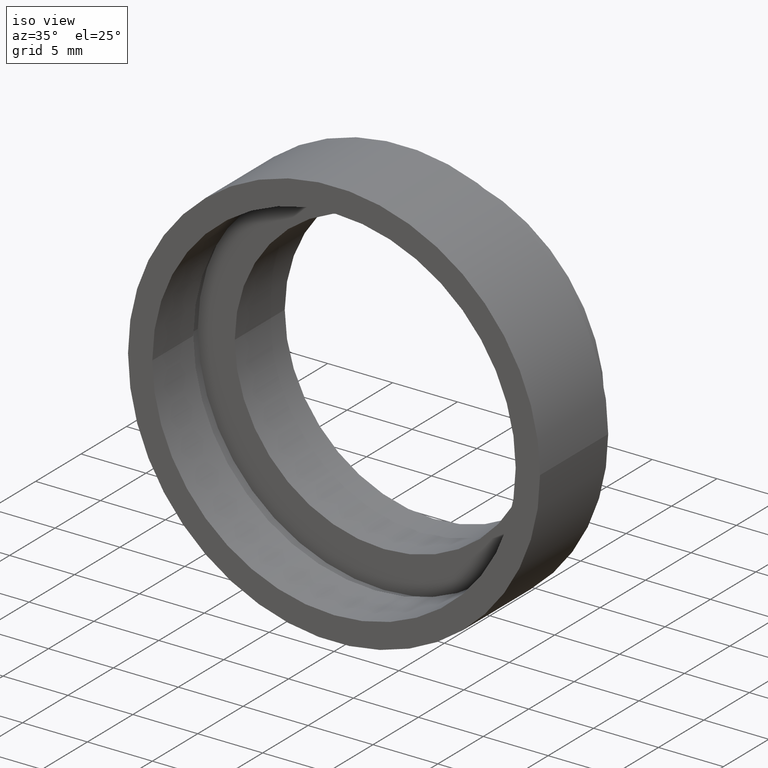
[diagram: clean part render]
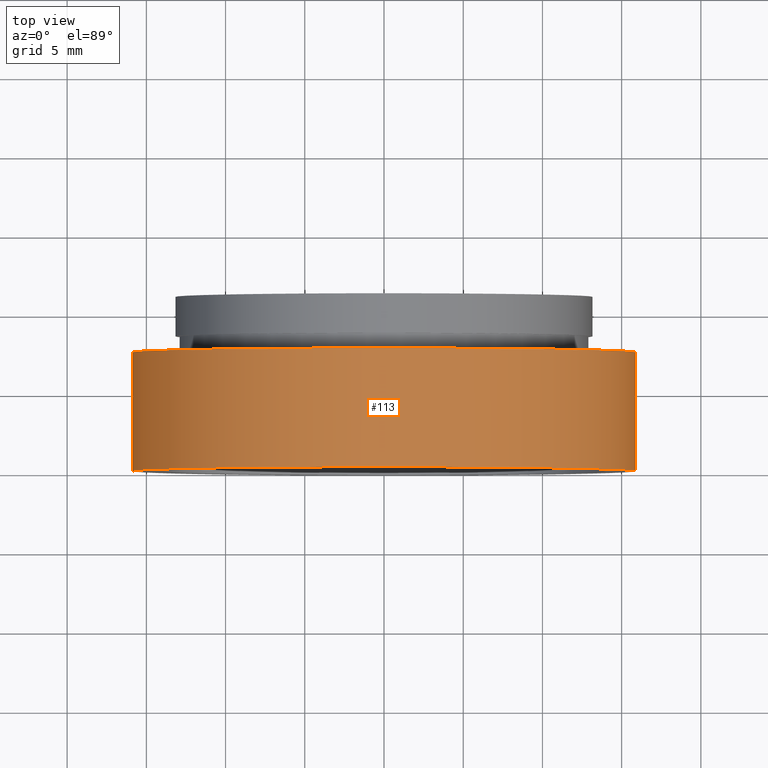
[diagram: tour spotlight — one face highlighted and labeled with its STEP entity id]
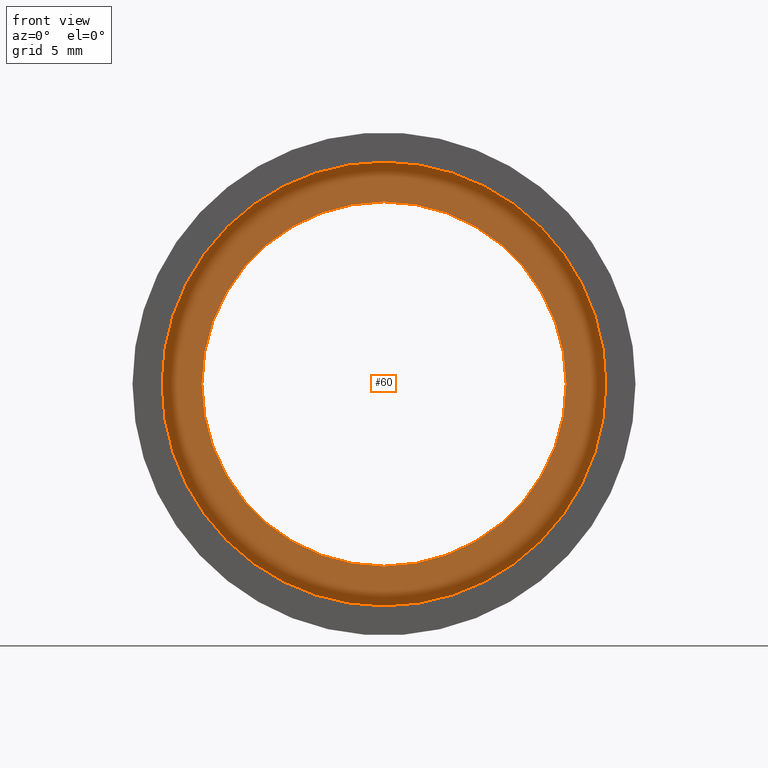
[diagram: tour spotlight — one face highlighted and labeled with its STEP entity id]
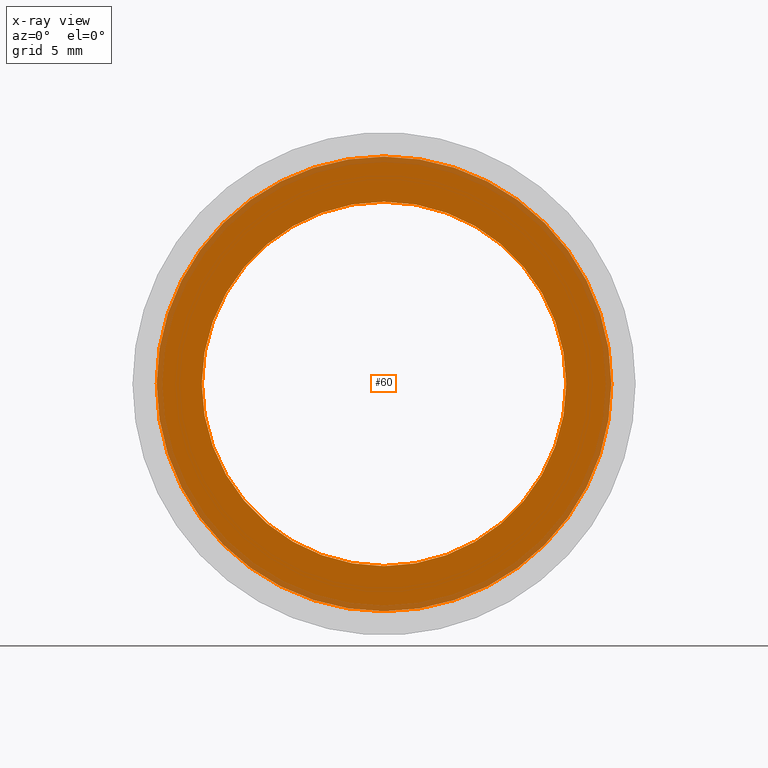
[diagram: x-ray of the same camera — body ghosted, this tour face saturated]
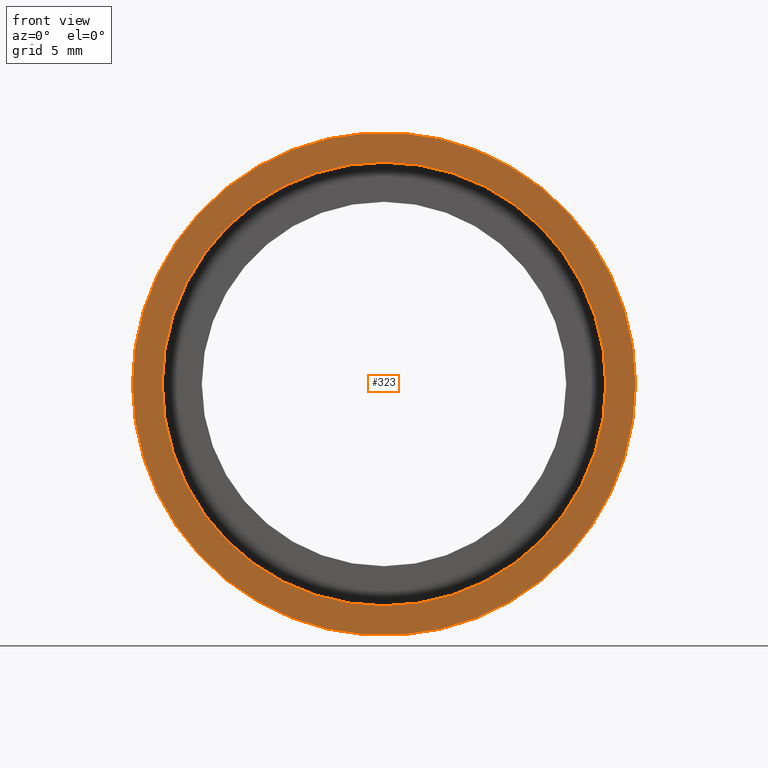
[diagram: tour spotlight — one face highlighted and labeled with its STEP entity id]
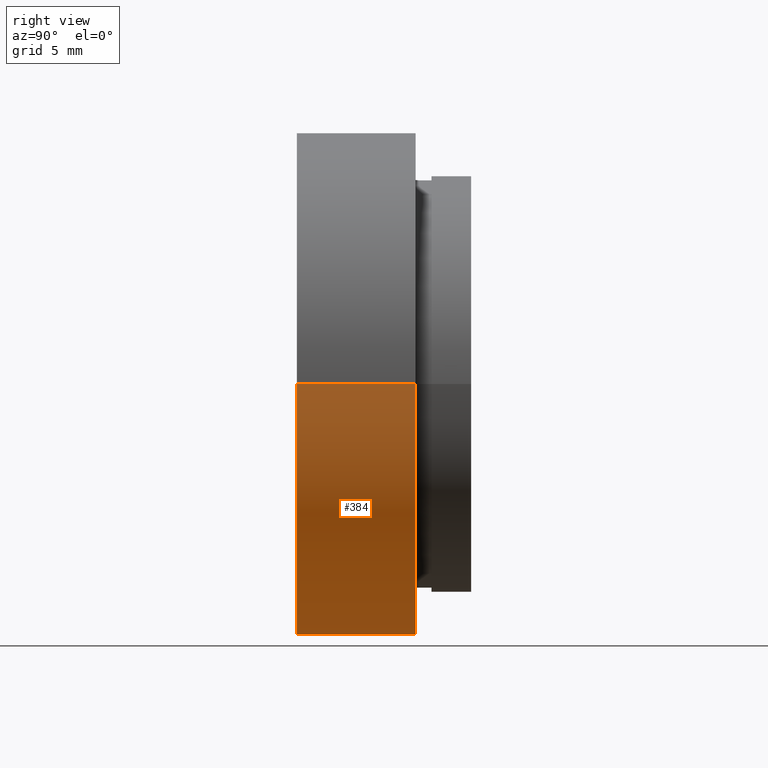
[diagram: tour spotlight — one face highlighted and labeled with its STEP entity id]
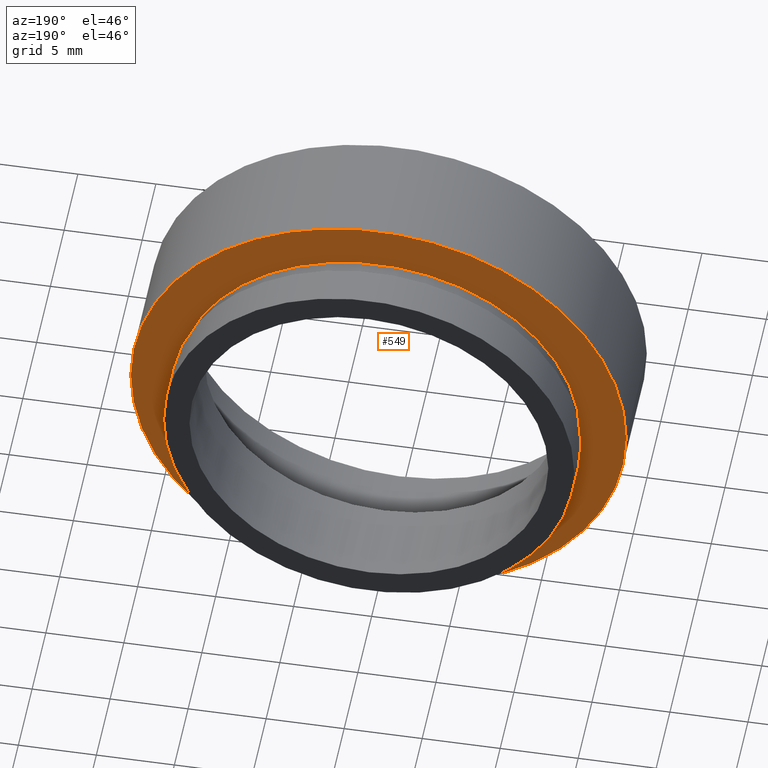
[diagram: tour spotlight — one face highlighted and labeled with its STEP entity id]
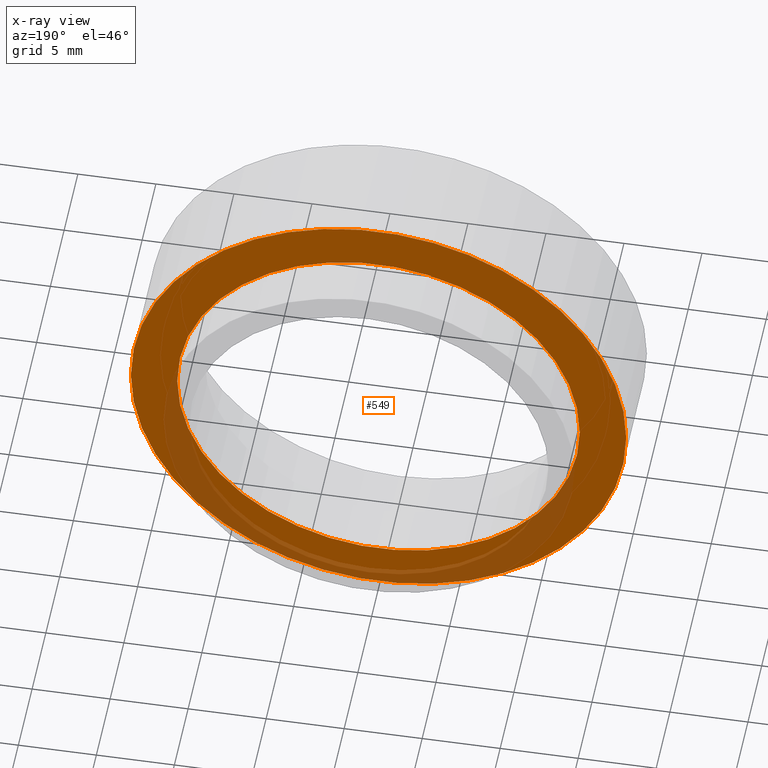
[diagram: x-ray of the same camera — body ghosted, this tour face saturated]
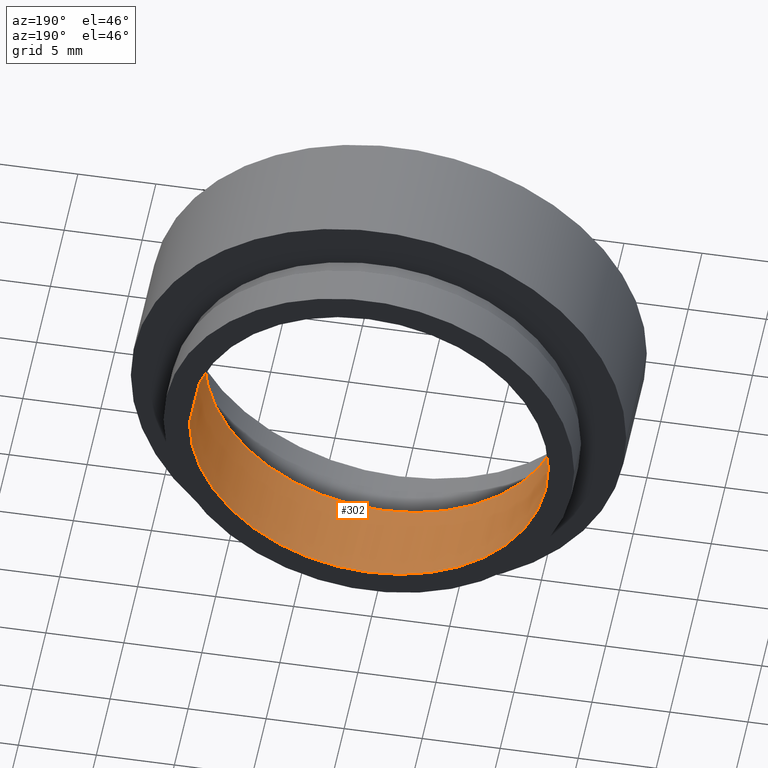
[diagram: tour spotlight — one face highlighted and labeled with its STEP entity id]
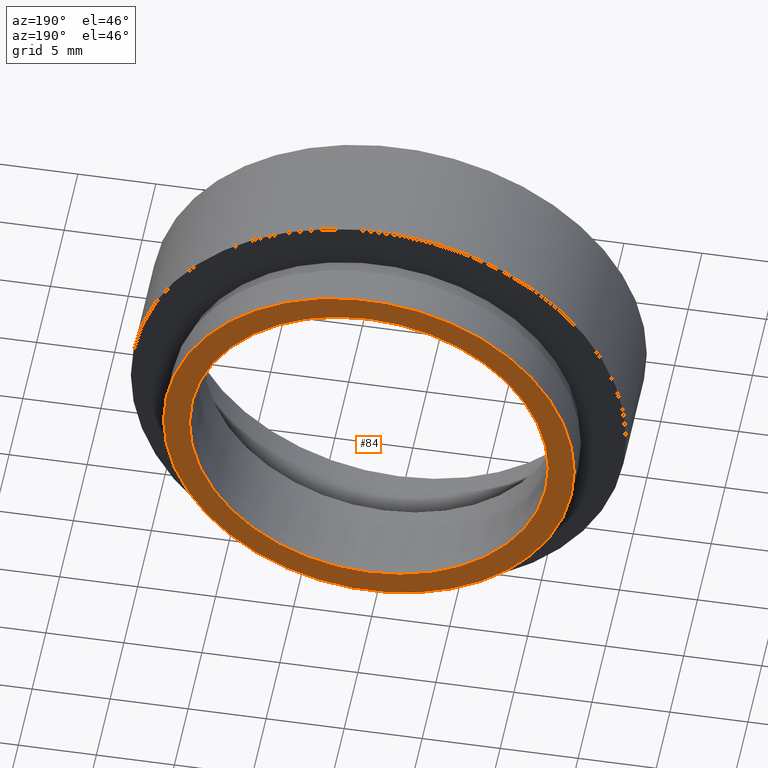
[diagram: tour spotlight — one face highlighted and labeled with its STEP entity id]
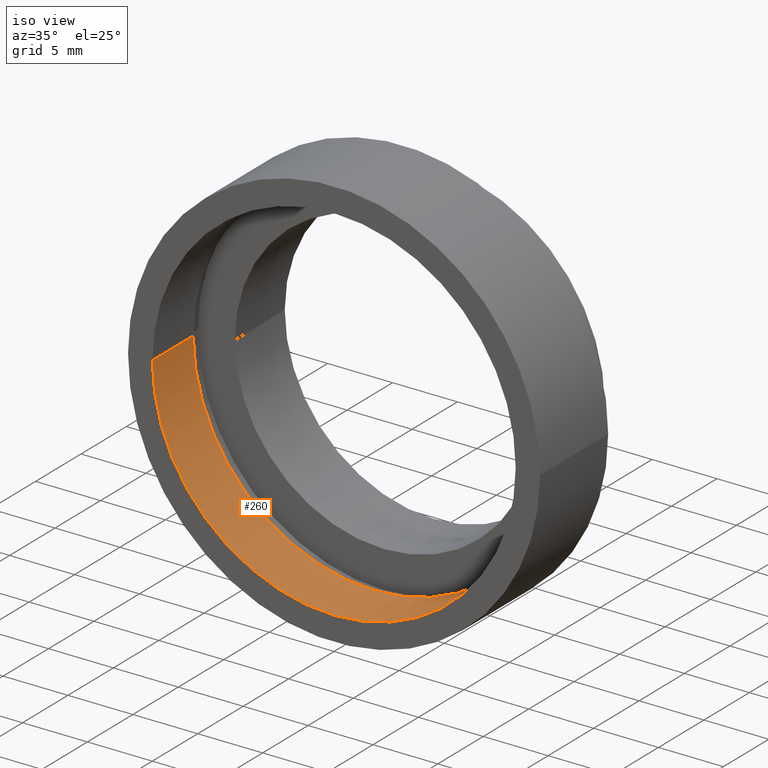
[diagram: tour spotlight — one face highlighted and labeled with its STEP entity id]
A machine part: a face-by-face anatomy tour. The part has 18 B-rep faces; the first image is the clean iso view, then the 8 largest visible faces are spotlighted one at a time (largest first), each with its STEP entity span.

Face 1 — top view, entity #113. In plain terms, the highlighted cylindrical surface (partial cylindrical patch) has radius 15.875 mm, axis along (-0, 1, -0).
Definition (entity closure, byte-faithful):
#6 = VERTEX_POINT ( 'NONE', #589 ) ;
#9 = CIRCLE ( 'NONE', #486, 15.87500000000000000 ) ;
#39 = CIRCLE ( 'NONE', #481, 15.87499999999999600 ) ;
#51 = DIRECTION ( 'NONE',  ( -1.224646799147351000E-016, 1.000000000000000000, -0.0000000000000000000 ) ) ;
#55 = CARTESIAN_POINT ( 'NONE',  ( 15.87500000000000000, -1.525320158307194900E-015, 1.944126793646423200E-015 ) ) ;
#77 = DIRECTION ( 'NONE',  ( -1.000000000000000000, -2.185478394931410600E-016, 0.0000000000000000000 ) ) ;
#99 = ORIENTED_EDGE ( 'NONE', *, *, #467, .T. ) ;
#110 = EDGE_LOOP ( 'NONE', ( #99, #141, #226, #500 ) ) ;
#113 = ADVANCED_FACE ( 'NONE', ( #496 ), #178, .T. ) ;
#119 = DIRECTION ( 'NONE',  ( -1.000000000000000000, -1.092739197465705300E-016, 0.0000000000000000000 ) ) ;
#123 = VERTEX_POINT ( 'NONE', #369 ) ;
#135 = VECTOR ( 'NONE', #591, 1000.000000000000000 ) ;
#141 = ORIENTED_EDGE ( 'NONE', *, *, #534, .T. ) ;
#160 = DIRECTION ( 'NONE',  ( -1.000000000000000000, -1.224646799147350700E-016, 0.0000000000000000000 ) ) ;
#164 = DIRECTION ( 'NONE',  ( -1.224646799147351000E-016, 1.000000000000000000, -0.0000000000000000000 ) ) ;
#178 = CYLINDRICAL_SURFACE ( 'NONE', #517, 15.87500000000000000 ) ;
#213 = LINE ( 'NONE', #402, #397 ) ;
#226 = ORIENTED_EDGE ( 'NONE', *, *, #600, .F. ) ;
#369 = CARTESIAN_POINT ( 'NONE',  ( 15.87500000000000000, 7.500000000000000000, 1.944126793646423200E-015 ) ) ;
#379 = CARTESIAN_POINT ( 'NONE',  ( 0.0000000000000000000, 16.88601823708207700, 0.0000000000000000000 ) ) ;
#397 = VECTOR ( 'NONE', #51, 1000.000000000000000 ) ;
#402 = CARTESIAN_POINT ( 'NONE',  ( 15.87500000000000000, 16.88601823708208000, 1.944126793646423200E-015 ) ) ;
#415 = CARTESIAN_POINT ( 'NONE',  ( -15.87499999999999300, -5.413573745600033100E-015, 0.0000000000000000000 ) ) ;
#419 = CARTESIAN_POINT ( 'NONE',  ( 1.149455719078122700E-015, 7.499999999999998200, 0.0000000000000000000 ) ) ;
#426 = DIRECTION ( 'NONE',  ( -1.224646799147351000E-016, 1.000000000000000000, -0.0000000000000000000 ) ) ;
#445 = VERTEX_POINT ( 'NONE', #55 ) ;
#458 = CARTESIAN_POINT ( 'NONE',  ( 2.067940818438636500E-015, -3.469446951953614200E-015, 0.0000000000000000000 ) ) ;
#465 = VERTEX_POINT ( 'NONE', #415 ) ;
#467 = EDGE_CURVE ( 'NONE', #465, #445, #39, .T. ) ;
#481 = AXIS2_PLACEMENT_3D ( 'NONE', #458, #595, #160 ) ;
#486 = AXIS2_PLACEMENT_3D ( 'NONE', #419, #164, #119 ) ;
#496 = FACE_OUTER_BOUND ( 'NONE', #110, .T. ) ;
#498 = CARTESIAN_POINT ( 'NONE',  ( -15.87500000000000000, 16.88601823708207300, 0.0000000000000000000 ) ) ;
#500 = ORIENTED_EDGE ( 'NONE', *, *, #567, .F. ) ;
#517 = AXIS2_PLACEMENT_3D ( 'NONE', #379, #426, #77 ) ;
#534 = EDGE_CURVE ( 'NONE', #445, #123, #213, .T. ) ;
#567 = EDGE_CURVE ( 'NONE', #465, #6, #578, .T. ) ;
#578 = LINE ( 'NONE', #498, #135 ) ;
#589 = CARTESIAN_POINT ( 'NONE',  ( -15.87500000000000000, 7.499999999999996400, 0.0000000000000000000 ) ) ;
#591 = DIRECTION ( 'NONE',  ( -1.224646799147351000E-016, 1.000000000000000000, -0.0000000000000000000 ) ) ;
#595 = DIRECTION ( 'NONE',  ( -1.224646799147351000E-016, 1.000000000000000000, -0.0000000000000000000 ) ) ;
#600 = EDGE_CURVE ( 'NONE', #6, #123, #9, .T. ) ;

Face 2 — front view, entity #60. An x-ray twin of the same camera follows (body ghosted, this face saturated) — the face is partly hidden behind the body. In plain terms, the highlighted planar face has unit normal (-0, 1, 0).
Definition (entity closure, byte-faithful):
#17 = CARTESIAN_POINT ( 'NONE',  ( 1.394385078907593200E-015, 5.499999999999996400, 0.0000000000000000000 ) ) ;
#27 = CARTESIAN_POINT ( 'NONE',  ( 14.35000000000000000, 5.499999999999998200, 1.757368156776451600E-015 ) ) ;
#37 = AXIS2_PLACEMENT_3D ( 'NONE', #550, #413, #256 ) ;
#59 = DIRECTION ( 'NONE',  ( -1.000000000000000000, -1.508455196501571400E-016, 0.0000000000000000000 ) ) ;
#60 = ADVANCED_FACE ( 'NONE', ( #516, #278 ), #610, .F. ) ;
#67 = VERTEX_POINT ( 'NONE', #27 ) ;
#68 = CARTESIAN_POINT ( 'NONE',  ( -11.49999999999999800, 5.499999999999996400, 0.0000000000000000000 ) ) ;
#81 = AXIS2_PLACEMENT_3D ( 'NONE', #204, #599, #59 ) ;
#151 = CARTESIAN_POINT ( 'NONE',  ( -14.34999999999999600, 5.499999999999994700, 0.0000000000000000000 ) ) ;
#153 = DIRECTION ( 'NONE',  ( -1.224646799147351000E-016, 1.000000000000000000, -0.0000000000000000000 ) ) ;
#176 = CIRCLE ( 'NONE', #385, 11.50000000000000000 ) ;
#195 = VERTEX_POINT ( 'NONE', #151 ) ;
#204 = CARTESIAN_POINT ( 'NONE',  ( 1.394385078907593000E-015, 5.499999999999998200, 0.0000000000000000000 ) ) ;
#256 = DIRECTION ( 'NONE',  ( -1.000000000000000000, -1.208866533781747400E-016, 0.0000000000000000000 ) ) ;
#259 = CARTESIAN_POINT ( 'NONE',  ( 1.394385078907593000E-015, 5.499999999999998200, 0.0000000000000000000 ) ) ;
#268 = DIRECTION ( 'NONE',  ( -1.224646799147351000E-016, 1.000000000000000000, 0.0000000000000000000 ) ) ;
#278 = FACE_BOUND ( 'NONE', #539, .T. ) ;
#312 = CARTESIAN_POINT ( 'NONE',  ( 11.50000000000000200, 5.500000000000000000, 0.0000000000000000000 ) ) ;
#324 = ORIENTED_EDGE ( 'NONE', *, *, #460, .T. ) ;
#332 = AXIS2_PLACEMENT_3D ( 'NONE', #17, #347, #596 ) ;
#335 = CIRCLE ( 'NONE', #332, 14.34999999999999800 ) ;
#345 = ORIENTED_EDGE ( 'NONE', *, *, #562, .F. ) ;
#347 = DIRECTION ( 'NONE',  ( -1.224646799147351000E-016, 1.000000000000000000, -0.0000000000000000000 ) ) ;
#349 = CIRCLE ( 'NONE', #37, 14.34999999999999800 ) ;
#359 = DIRECTION ( 'NONE',  ( -1.000000000000000000, -1.508455196501571400E-016, 0.0000000000000000000 ) ) ;
#380 = ORIENTED_EDGE ( 'NONE', *, *, #443, .T. ) ;
#385 = AXIS2_PLACEMENT_3D ( 'NONE', #259, #153, #359 ) ;
#394 = VERTEX_POINT ( 'NONE', #566 ) ;
#398 = AXIS2_PLACEMENT_3D ( 'NONE', #312, #268, #468 ) ;
#413 = DIRECTION ( 'NONE',  ( -1.224646799147351000E-016, 1.000000000000000000, -0.0000000000000000000 ) ) ;
#422 = VERTEX_POINT ( 'NONE', #68 ) ;
#439 = EDGE_CURVE ( 'NONE', #67, #195, #349, .T. ) ;
#443 = EDGE_CURVE ( 'NONE', #394, #422, #570, .T. ) ;
#460 = EDGE_CURVE ( 'NONE', #422, #394, #176, .T. ) ;
#468 = DIRECTION ( 'NONE',  ( -1.000000000000000000, -1.224646799147351000E-016, 0.0000000000000000000 ) ) ;
#516 = FACE_OUTER_BOUND ( 'NONE', #521, .T. ) ;
#521 = EDGE_LOOP ( 'NONE', ( #345, #601 ) ) ;
#539 = EDGE_LOOP ( 'NONE', ( #324, #380 ) ) ;
#550 = CARTESIAN_POINT ( 'NONE',  ( 1.394385078907593200E-015, 5.499999999999996400, 0.0000000000000000000 ) ) ;
#562 = EDGE_CURVE ( 'NONE', #195, #67, #335, .T. ) ;
#566 = CARTESIAN_POINT ( 'NONE',  ( 11.50000000000000200, 5.500000000000000000, 1.408343819019456600E-015 ) ) ;
#570 = CIRCLE ( 'NONE', #81, 11.50000000000000000 ) ;
#596 = DIRECTION ( 'NONE',  ( -1.000000000000000000, -1.208866533781747400E-016, 0.0000000000000000000 ) ) ;
#599 = DIRECTION ( 'NONE',  ( -1.224646799147351000E-016, 1.000000000000000000, -0.0000000000000000000 ) ) ;
#601 = ORIENTED_EDGE ( 'NONE', *, *, #439, .F. ) ;
#610 = PLANE ( 'NONE',  #398 ) ;

Face 3 — front view, entity #323. In plain terms, the highlighted planar face has unit normal (-0, 1, 0).
Definition (entity closure, byte-faithful):
#22 = AXIS2_PLACEMENT_3D ( 'NONE', #169, #28, #563 ) ;
#28 = DIRECTION ( 'NONE',  ( -1.224646799147351000E-016, 1.000000000000000000, -0.0000000000000000000 ) ) ;
#35 = CIRCLE ( 'NONE', #227, 14.00000000000000200 ) ;
#39 = CIRCLE ( 'NONE', #481, 15.87499999999999600 ) ;
#45 = EDGE_CURVE ( 'NONE', #395, #488, #35, .T. ) ;
#55 = CARTESIAN_POINT ( 'NONE',  ( 15.87500000000000000, -1.525320158307194900E-015, 1.944126793646423200E-015 ) ) ;
#70 = CARTESIAN_POINT ( 'NONE',  ( 15.87500000000000000, -1.944126793646426700E-016, 0.0000000000000000000 ) ) ;
#79 = FACE_OUTER_BOUND ( 'NONE', #584, .T. ) ;
#89 = ORIENTED_EDGE ( 'NONE', *, *, #467, .F. ) ;
#115 = EDGE_LOOP ( 'NONE', ( #490, #558 ) ) ;
#116 = CARTESIAN_POINT ( 'NONE',  ( 2.067940818438636100E-015, 0.0000000000000000000, 0.0000000000000000000 ) ) ;
#122 = DIRECTION ( 'NONE',  ( -1.000000000000000000, -1.224646799147351000E-016, 0.0000000000000000000 ) ) ;
#126 = DIRECTION ( 'NONE',  ( -1.000000000000000000, -1.224646799147351000E-016, 0.0000000000000000000 ) ) ;
#137 = AXIS2_PLACEMENT_3D ( 'NONE', #70, #430, #122 ) ;
#160 = DIRECTION ( 'NONE',  ( -1.000000000000000000, -1.224646799147350700E-016, 0.0000000000000000000 ) ) ;
#169 = CARTESIAN_POINT ( 'NONE',  ( 2.067940818438636500E-015, -3.469446951953614200E-015, 0.0000000000000000000 ) ) ;
#220 = CARTESIAN_POINT ( 'NONE',  ( 14.00000000000000400, 1.714505518806291700E-015, 1.714505518806294800E-015 ) ) ;
#227 = AXIS2_PLACEMENT_3D ( 'NONE', #418, #619, #126 ) ;
#254 = ORIENTED_EDGE ( 'NONE', *, *, #325, .F. ) ;
#258 = DIRECTION ( 'NONE',  ( -1.224646799147351000E-016, 1.000000000000000000, -0.0000000000000000000 ) ) ;
#323 = ADVANCED_FACE ( 'NONE', ( #79, #579 ), #367, .F. ) ;
#325 = EDGE_CURVE ( 'NONE', #445, #465, #392, .T. ) ;
#355 = CARTESIAN_POINT ( 'NONE',  ( -14.00000000000000000, -1.714505518806291700E-015, 0.0000000000000000000 ) ) ;
#367 = PLANE ( 'NONE',  #137 ) ;
#392 = CIRCLE ( 'NONE', #22, 15.87499999999999600 ) ;
#395 = VERTEX_POINT ( 'NONE', #220 ) ;
#412 = DIRECTION ( 'NONE',  ( -1.000000000000000000, -1.224646799147351000E-016, 0.0000000000000000000 ) ) ;
#415 = CARTESIAN_POINT ( 'NONE',  ( -15.87499999999999300, -5.413573745600033100E-015, 0.0000000000000000000 ) ) ;
#418 = CARTESIAN_POINT ( 'NONE',  ( 2.067940818438636100E-015, 0.0000000000000000000, 0.0000000000000000000 ) ) ;
#430 = DIRECTION ( 'NONE',  ( -1.224646799147351000E-016, 1.000000000000000000, 0.0000000000000000000 ) ) ;
#445 = VERTEX_POINT ( 'NONE', #55 ) ;
#458 = CARTESIAN_POINT ( 'NONE',  ( 2.067940818438636500E-015, -3.469446951953614200E-015, 0.0000000000000000000 ) ) ;
#465 = VERTEX_POINT ( 'NONE', #415 ) ;
#467 = EDGE_CURVE ( 'NONE', #465, #445, #39, .T. ) ;
#481 = AXIS2_PLACEMENT_3D ( 'NONE', #458, #595, #160 ) ;
#488 = VERTEX_POINT ( 'NONE', #355 ) ;
#490 = ORIENTED_EDGE ( 'NONE', *, *, #536, .T. ) ;
#494 = CIRCLE ( 'NONE', #514, 14.00000000000000200 ) ;
#514 = AXIS2_PLACEMENT_3D ( 'NONE', #116, #258, #412 ) ;
#536 = EDGE_CURVE ( 'NONE', #488, #395, #494, .T. ) ;
#558 = ORIENTED_EDGE ( 'NONE', *, *, #45, .T. ) ;
#563 = DIRECTION ( 'NONE',  ( -1.000000000000000000, -1.224646799147350700E-016, 0.0000000000000000000 ) ) ;
#579 = FACE_BOUND ( 'NONE', #115, .T. ) ;
#584 = EDGE_LOOP ( 'NONE', ( #89, #254 ) ) ;
#595 = DIRECTION ( 'NONE',  ( -1.224646799147351000E-016, 1.000000000000000000, -0.0000000000000000000 ) ) ;
#619 = DIRECTION ( 'NONE',  ( -1.224646799147351000E-016, 1.000000000000000000, -0.0000000000000000000 ) ) ;

Face 4 — right view, entity #384. In plain terms, the highlighted cylindrical surface (partial cylindrical patch) has radius 15.875 mm, axis along (-0, 1, -0).
Definition (entity closure, byte-faithful):
#6 = VERTEX_POINT ( 'NONE', #589 ) ;
#22 = AXIS2_PLACEMENT_3D ( 'NONE', #169, #28, #563 ) ;
#28 = DIRECTION ( 'NONE',  ( -1.224646799147351000E-016, 1.000000000000000000, -0.0000000000000000000 ) ) ;
#51 = DIRECTION ( 'NONE',  ( -1.224646799147351000E-016, 1.000000000000000000, -0.0000000000000000000 ) ) ;
#55 = CARTESIAN_POINT ( 'NONE',  ( 15.87500000000000000, -1.525320158307194900E-015, 1.944126793646423200E-015 ) ) ;
#56 = CYLINDRICAL_SURFACE ( 'NONE', #266, 15.87500000000000000 ) ;
#90 = ORIENTED_EDGE ( 'NONE', *, *, #325, .T. ) ;
#92 = EDGE_LOOP ( 'NONE', ( #233, #90, #389, #129 ) ) ;
#123 = VERTEX_POINT ( 'NONE', #369 ) ;
#129 = ORIENTED_EDGE ( 'NONE', *, *, #507, .F. ) ;
#135 = VECTOR ( 'NONE', #591, 1000.000000000000000 ) ;
#167 = AXIS2_PLACEMENT_3D ( 'NONE', #587, #291, #508 ) ;
#169 = CARTESIAN_POINT ( 'NONE',  ( 2.067940818438636500E-015, -3.469446951953614200E-015, 0.0000000000000000000 ) ) ;
#172 = CARTESIAN_POINT ( 'NONE',  ( 0.0000000000000000000, 16.88601823708207700, 0.0000000000000000000 ) ) ;
#213 = LINE ( 'NONE', #402, #397 ) ;
#214 = DIRECTION ( 'NONE',  ( -1.000000000000000000, -2.185478394931410600E-016, 0.0000000000000000000 ) ) ;
#233 = ORIENTED_EDGE ( 'NONE', *, *, #534, .F. ) ;
#263 = DIRECTION ( 'NONE',  ( -1.224646799147351000E-016, 1.000000000000000000, -0.0000000000000000000 ) ) ;
#266 = AXIS2_PLACEMENT_3D ( 'NONE', #172, #263, #214 ) ;
#291 = DIRECTION ( 'NONE',  ( -1.224646799147351000E-016, 1.000000000000000000, -0.0000000000000000000 ) ) ;
#325 = EDGE_CURVE ( 'NONE', #445, #465, #392, .T. ) ;
#369 = CARTESIAN_POINT ( 'NONE',  ( 15.87500000000000000, 7.500000000000000000, 1.944126793646423200E-015 ) ) ;
#384 = ADVANCED_FACE ( 'NONE', ( #503 ), #56, .T. ) ;
#386 = CIRCLE ( 'NONE', #167, 15.87500000000000000 ) ;
#389 = ORIENTED_EDGE ( 'NONE', *, *, #567, .T. ) ;
#392 = CIRCLE ( 'NONE', #22, 15.87499999999999600 ) ;
#397 = VECTOR ( 'NONE', #51, 1000.000000000000000 ) ;
#402 = CARTESIAN_POINT ( 'NONE',  ( 15.87500000000000000, 16.88601823708208000, 1.944126793646423200E-015 ) ) ;
#415 = CARTESIAN_POINT ( 'NONE',  ( -15.87499999999999300, -5.413573745600033100E-015, 0.0000000000000000000 ) ) ;
#445 = VERTEX_POINT ( 'NONE', #55 ) ;
#465 = VERTEX_POINT ( 'NONE', #415 ) ;
#498 = CARTESIAN_POINT ( 'NONE',  ( -15.87500000000000000, 16.88601823708207300, 0.0000000000000000000 ) ) ;
#503 = FACE_OUTER_BOUND ( 'NONE', #92, .T. ) ;
#507 = EDGE_CURVE ( 'NONE', #123, #6, #386, .T. ) ;
#508 = DIRECTION ( 'NONE',  ( -1.000000000000000000, -1.092739197465705300E-016, 0.0000000000000000000 ) ) ;
#534 = EDGE_CURVE ( 'NONE', #445, #123, #213, .T. ) ;
#563 = DIRECTION ( 'NONE',  ( -1.000000000000000000, -1.224646799147350700E-016, 0.0000000000000000000 ) ) ;
#567 = EDGE_CURVE ( 'NONE', #465, #6, #578, .T. ) ;
#578 = LINE ( 'NONE', #498, #135 ) ;
#587 = CARTESIAN_POINT ( 'NONE',  ( 1.149455719078122700E-015, 7.499999999999998200, 0.0000000000000000000 ) ) ;
#589 = CARTESIAN_POINT ( 'NONE',  ( -15.87500000000000000, 7.499999999999996400, 0.0000000000000000000 ) ) ;
#591 = DIRECTION ( 'NONE',  ( -1.224646799147351000E-016, 1.000000000000000000, -0.0000000000000000000 ) ) ;

Face 5 — auxiliary view, entity #549. An x-ray twin of the same camera follows (body ghosted, this face saturated) — the face is partly hidden behind the body. In plain terms, the highlighted planar face has unit normal (0, -1, 0).
Definition (entity closure, byte-faithful):
#6 = VERTEX_POINT ( 'NONE', #589 ) ;
#9 = CIRCLE ( 'NONE', #486, 15.87500000000000000 ) ;
#11 = VERTEX_POINT ( 'NONE', #244 ) ;
#12 = PLANE ( 'NONE',  #205 ) ;
#38 = ORIENTED_EDGE ( 'NONE', *, *, #507, .T. ) ;
#54 = DIRECTION ( 'NONE',  ( 1.000000000000000000, 1.224646799147351000E-016, 0.0000000000000000000 ) ) ;
#73 = CARTESIAN_POINT ( 'NONE',  ( 1.149455719078122700E-015, 7.499999999999998200, 0.0000000000000000000 ) ) ;
#86 = FACE_OUTER_BOUND ( 'NONE', #612, .T. ) ;
#93 = ORIENTED_EDGE ( 'NONE', *, *, #257, .F. ) ;
#119 = DIRECTION ( 'NONE',  ( -1.000000000000000000, -1.092739197465705300E-016, 0.0000000000000000000 ) ) ;
#123 = VERTEX_POINT ( 'NONE', #369 ) ;
#125 = EDGE_CURVE ( 'NONE', #219, #11, #217, .T. ) ;
#164 = DIRECTION ( 'NONE',  ( -1.224646799147351000E-016, 1.000000000000000000, -0.0000000000000000000 ) ) ;
#166 = CARTESIAN_POINT ( 'NONE',  ( 1.149455719078122700E-015, 7.499999999999998200, 0.0000000000000000000 ) ) ;
#167 = AXIS2_PLACEMENT_3D ( 'NONE', #587, #291, #508 ) ;
#205 = AXIS2_PLACEMENT_3D ( 'NONE', #450, #303, #54 ) ;
#217 = CIRCLE ( 'NONE', #464, 12.90000000000000000 ) ;
#219 = VERTEX_POINT ( 'NONE', #368 ) ;
#244 = CARTESIAN_POINT ( 'NONE',  ( 12.90000000000000200, 7.500000000000000000, 1.579794370900085700E-015 ) ) ;
#248 = ORIENTED_EDGE ( 'NONE', *, *, #600, .T. ) ;
#257 = EDGE_CURVE ( 'NONE', #11, #219, #348, .T. ) ;
#267 = DIRECTION ( 'NONE',  ( -1.224646799147351000E-016, 1.000000000000000000, -0.0000000000000000000 ) ) ;
#287 = EDGE_LOOP ( 'NONE', ( #361, #93 ) ) ;
#291 = DIRECTION ( 'NONE',  ( -1.224646799147351000E-016, 1.000000000000000000, -0.0000000000000000000 ) ) ;
#292 = DIRECTION ( 'NONE',  ( -1.000000000000000000, -1.344746880602176000E-016, 0.0000000000000000000 ) ) ;
#303 = DIRECTION ( 'NONE',  ( 1.224646799147351000E-016, -1.000000000000000000, 0.0000000000000000000 ) ) ;
#311 = DIRECTION ( 'NONE',  ( -1.000000000000000000, -1.344746880602176000E-016, 0.0000000000000000000 ) ) ;
#313 = FACE_BOUND ( 'NONE', #287, .T. ) ;
#348 = CIRCLE ( 'NONE', #583, 12.90000000000000000 ) ;
#361 = ORIENTED_EDGE ( 'NONE', *, *, #125, .F. ) ;
#368 = CARTESIAN_POINT ( 'NONE',  ( -12.89999999999999900, 7.499999999999996400, 0.0000000000000000000 ) ) ;
#369 = CARTESIAN_POINT ( 'NONE',  ( 15.87500000000000000, 7.500000000000000000, 1.944126793646423200E-015 ) ) ;
#386 = CIRCLE ( 'NONE', #167, 15.87500000000000000 ) ;
#419 = CARTESIAN_POINT ( 'NONE',  ( 1.149455719078122700E-015, 7.499999999999998200, 0.0000000000000000000 ) ) ;
#450 = CARTESIAN_POINT ( 'NONE',  ( 12.90000000000000200, 7.500000000000000000, 0.0000000000000000000 ) ) ;
#464 = AXIS2_PLACEMENT_3D ( 'NONE', #73, #520, #292 ) ;
#486 = AXIS2_PLACEMENT_3D ( 'NONE', #419, #164, #119 ) ;
#507 = EDGE_CURVE ( 'NONE', #123, #6, #386, .T. ) ;
#508 = DIRECTION ( 'NONE',  ( -1.000000000000000000, -1.092739197465705300E-016, 0.0000000000000000000 ) ) ;
#520 = DIRECTION ( 'NONE',  ( -1.224646799147351000E-016, 1.000000000000000000, -0.0000000000000000000 ) ) ;
#549 = ADVANCED_FACE ( 'NONE', ( #313, #86 ), #12, .F. ) ;
#583 = AXIS2_PLACEMENT_3D ( 'NONE', #166, #267, #311 ) ;
#587 = CARTESIAN_POINT ( 'NONE',  ( 1.149455719078122700E-015, 7.499999999999998200, 0.0000000000000000000 ) ) ;
#589 = CARTESIAN_POINT ( 'NONE',  ( -15.87500000000000000, 7.499999999999996400, 0.0000000000000000000 ) ) ;
#600 = EDGE_CURVE ( 'NONE', #6, #123, #9, .T. ) ;
#612 = EDGE_LOOP ( 'NONE', ( #248, #38 ) ) ;

Face 6 — auxiliary view, entity #302. In plain terms, the highlighted cylindrical surface (partial cylindrical patch) has radius 11.5 mm, axis along (-0, 1, -0).
Definition (entity closure, byte-faithful):
#26 = EDGE_CURVE ( 'NONE', #422, #333, #98, .T. ) ;
#59 = DIRECTION ( 'NONE',  ( -1.000000000000000000, -1.508455196501571400E-016, 0.0000000000000000000 ) ) ;
#66 = CARTESIAN_POINT ( 'NONE',  ( 11.50000000000000200, 10.99999999999999800, 1.408343819019456600E-015 ) ) ;
#68 = CARTESIAN_POINT ( 'NONE',  ( -11.49999999999999800, 5.499999999999996400, 0.0000000000000000000 ) ) ;
#81 = AXIS2_PLACEMENT_3D ( 'NONE', #204, #599, #59 ) ;
#98 = LINE ( 'NONE', #102, #239 ) ;
#102 = CARTESIAN_POINT ( 'NONE',  ( -11.50000000000000000, 16.88601823708207700, 0.0000000000000000000 ) ) ;
#136 = EDGE_CURVE ( 'NONE', #614, #333, #538, .T. ) ;
#147 = DIRECTION ( 'NONE',  ( -1.000000000000000000, -1.508455196501571200E-016, 0.0000000000000000000 ) ) ;
#185 = EDGE_CURVE ( 'NONE', #394, #614, #330, .T. ) ;
#193 = CARTESIAN_POINT ( 'NONE',  ( 11.50000000000000000, 16.88601823708207700, 1.408343819019456200E-015 ) ) ;
#204 = CARTESIAN_POINT ( 'NONE',  ( 1.394385078907593000E-015, 5.499999999999998200, 0.0000000000000000000 ) ) ;
#239 = VECTOR ( 'NONE', #250, 1000.000000000000000 ) ;
#249 = VECTOR ( 'NONE', #543, 1000.000000000000000 ) ;
#250 = DIRECTION ( 'NONE',  ( -1.224646799147351000E-016, 1.000000000000000000, -0.0000000000000000000 ) ) ;
#302 = ADVANCED_FACE ( 'NONE', ( #487 ), #593, .F. ) ;
#307 = ORIENTED_EDGE ( 'NONE', *, *, #443, .F. ) ;
#309 = AXIS2_PLACEMENT_3D ( 'NONE', #540, #353, #147 ) ;
#330 = LINE ( 'NONE', #193, #249 ) ;
#333 = VERTEX_POINT ( 'NONE', #377 ) ;
#353 = DIRECTION ( 'NONE',  ( -1.224646799147351000E-016, 1.000000000000000000, -0.0000000000000000000 ) ) ;
#377 = CARTESIAN_POINT ( 'NONE',  ( -11.50000000000000200, 10.99999999999999500, 0.0000000000000000000 ) ) ;
#390 = ORIENTED_EDGE ( 'NONE', *, *, #136, .T. ) ;
#394 = VERTEX_POINT ( 'NONE', #566 ) ;
#403 = ORIENTED_EDGE ( 'NONE', *, *, #26, .F. ) ;
#407 = ORIENTED_EDGE ( 'NONE', *, *, #185, .T. ) ;
#422 = VERTEX_POINT ( 'NONE', #68 ) ;
#427 = CARTESIAN_POINT ( 'NONE',  ( 0.0000000000000000000, 16.88601823708207700, 0.0000000000000000000 ) ) ;
#443 = EDGE_CURVE ( 'NONE', #394, #422, #570, .T. ) ;
#487 = FACE_OUTER_BOUND ( 'NONE', #535, .T. ) ;
#518 = DIRECTION ( 'NONE',  ( -1.000000000000000000, 0.0000000000000000000, 0.0000000000000000000 ) ) ;
#526 = DIRECTION ( 'NONE',  ( -1.224646799147351000E-016, 1.000000000000000000, -0.0000000000000000000 ) ) ;
#535 = EDGE_LOOP ( 'NONE', ( #307, #407, #390, #403 ) ) ;
#537 = AXIS2_PLACEMENT_3D ( 'NONE', #427, #526, #518 ) ;
#538 = CIRCLE ( 'NONE', #309, 11.50000000000000200 ) ;
#540 = CARTESIAN_POINT ( 'NONE',  ( 7.208293393765502500E-016, 10.99999999999999600, 0.0000000000000000000 ) ) ;
#543 = DIRECTION ( 'NONE',  ( -1.224646799147351000E-016, 1.000000000000000000, -0.0000000000000000000 ) ) ;
#566 = CARTESIAN_POINT ( 'NONE',  ( 11.50000000000000200, 5.500000000000000000, 1.408343819019456600E-015 ) ) ;
#570 = CIRCLE ( 'NONE', #81, 11.50000000000000000 ) ;
#593 = CYLINDRICAL_SURFACE ( 'NONE', #537, 11.50000000000000000 ) ;
#599 = DIRECTION ( 'NONE',  ( -1.224646799147351000E-016, 1.000000000000000000, -0.0000000000000000000 ) ) ;
#614 = VERTEX_POINT ( 'NONE', #66 ) ;

Face 7 — auxiliary view, entity #84. In plain terms, the highlighted planar face has unit normal (0, -1, 0).
Definition (entity closure, byte-faithful):
#30 = DIRECTION ( 'NONE',  ( -1.000000000000000000, -1.318178933113075200E-016, 0.0000000000000000000 ) ) ;
#66 = CARTESIAN_POINT ( 'NONE',  ( 11.50000000000000200, 10.99999999999999800, 1.408343819019456600E-015 ) ) ;
#84 = ADVANCED_FACE ( 'NONE', ( #469, #420 ), #272, .F. ) ;
#94 = EDGE_CURVE ( 'NONE', #433, #240, #370, .T. ) ;
#97 = DIRECTION ( 'NONE',  ( -1.000000000000000000, -1.318178933113075200E-016, 0.0000000000000000000 ) ) ;
#101 = ORIENTED_EDGE ( 'NONE', *, *, #136, .F. ) ;
#133 = EDGE_LOOP ( 'NONE', ( #483, #101 ) ) ;
#136 = EDGE_CURVE ( 'NONE', #614, #333, #538, .T. ) ;
#147 = DIRECTION ( 'NONE',  ( -1.000000000000000000, -1.508455196501571200E-016, 0.0000000000000000000 ) ) ;
#159 = CARTESIAN_POINT ( 'NONE',  ( 7.208293393765502500E-016, 10.99999999999999600, 0.0000000000000000000 ) ) ;
#171 = DIRECTION ( 'NONE',  ( 1.224646799147351000E-016, -1.000000000000000000, 0.0000000000000000000 ) ) ;
#175 = EDGE_LOOP ( 'NONE', ( #478, #590 ) ) ;
#189 = EDGE_CURVE ( 'NONE', #240, #433, #616, .T. ) ;
#216 = DIRECTION ( 'NONE',  ( 1.000000000000000000, 1.224646799147351000E-016, 0.0000000000000000000 ) ) ;
#221 = DIRECTION ( 'NONE',  ( -1.224646799147351000E-016, 1.000000000000000000, -0.0000000000000000000 ) ) ;
#240 = VERTEX_POINT ( 'NONE', #603 ) ;
#246 = CARTESIAN_POINT ( 'NONE',  ( 7.208293393765502500E-016, 10.99999999999999600, 0.0000000000000000000 ) ) ;
#272 = PLANE ( 'NONE',  #436 ) ;
#283 = AXIS2_PLACEMENT_3D ( 'NONE', #617, #221, #30 ) ;
#289 = CIRCLE ( 'NONE', #410, 11.50000000000000200 ) ;
#309 = AXIS2_PLACEMENT_3D ( 'NONE', #540, #353, #147 ) ;
#333 = VERTEX_POINT ( 'NONE', #377 ) ;
#353 = DIRECTION ( 'NONE',  ( -1.224646799147351000E-016, 1.000000000000000000, -0.0000000000000000000 ) ) ;
#362 = DIRECTION ( 'NONE',  ( -1.000000000000000000, -1.508455196501571200E-016, 0.0000000000000000000 ) ) ;
#370 = CIRCLE ( 'NONE', #283, 13.16000000000000000 ) ;
#377 = CARTESIAN_POINT ( 'NONE',  ( -11.50000000000000200, 10.99999999999999500, 0.0000000000000000000 ) ) ;
#410 = AXIS2_PLACEMENT_3D ( 'NONE', #159, #554, #362 ) ;
#420 = FACE_OUTER_BOUND ( 'NONE', #175, .T. ) ;
#433 = VERTEX_POINT ( 'NONE', #561 ) ;
#436 = AXIS2_PLACEMENT_3D ( 'NONE', #473, #171, #216 ) ;
#453 = DIRECTION ( 'NONE',  ( -1.224646799147351000E-016, 1.000000000000000000, -0.0000000000000000000 ) ) ;
#469 = FACE_BOUND ( 'NONE', #133, .T. ) ;
#473 = CARTESIAN_POINT ( 'NONE',  ( 11.50000000000000200, 10.99999999999999800, 0.0000000000000000000 ) ) ;
#478 = ORIENTED_EDGE ( 'NONE', *, *, #189, .T. ) ;
#483 = ORIENTED_EDGE ( 'NONE', *, *, #585, .F. ) ;
#493 = AXIS2_PLACEMENT_3D ( 'NONE', #246, #453, #97 ) ;
#538 = CIRCLE ( 'NONE', #309, 11.50000000000000200 ) ;
#540 = CARTESIAN_POINT ( 'NONE',  ( 7.208293393765502500E-016, 10.99999999999999600, 0.0000000000000000000 ) ) ;
#554 = DIRECTION ( 'NONE',  ( -1.224646799147351000E-016, 1.000000000000000000, -0.0000000000000000000 ) ) ;
#561 = CARTESIAN_POINT ( 'NONE',  ( 13.16000000000000200, 10.99999999999999800, 1.611635187677917100E-015 ) ) ;
#585 = EDGE_CURVE ( 'NONE', #333, #614, #289, .T. ) ;
#590 = ORIENTED_EDGE ( 'NONE', *, *, #94, .T. ) ;
#603 = CARTESIAN_POINT ( 'NONE',  ( -13.16000000000000000, 10.99999999999999500, 0.0000000000000000000 ) ) ;
#614 = VERTEX_POINT ( 'NONE', #66 ) ;
#616 = CIRCLE ( 'NONE', #493, 13.16000000000000000 ) ;
#617 = CARTESIAN_POINT ( 'NONE',  ( 7.208293393765502500E-016, 10.99999999999999600, 0.0000000000000000000 ) ) ;

Face 8 — iso view, entity #260. In plain terms, the highlighted cylindrical surface (partial cylindrical patch) has radius 14 mm, axis along (-0, 1, -0).
Definition (entity closure, byte-faithful):
#1 = EDGE_CURVE ( 'NONE', #459, #470, #339, .T. ) ;
#3 = EDGE_LOOP ( 'NONE', ( #620, #608, #533, #376 ) ) ;
#8 = AXIS2_PLACEMENT_3D ( 'NONE', #452, #14, #49 ) ;
#14 = DIRECTION ( 'NONE',  ( -1.224646799147351000E-016, 1.000000000000000000, -0.0000000000000000000 ) ) ;
#24 = CARTESIAN_POINT ( 'NONE',  ( 0.0000000000000000000, 16.88601823708207700, 0.0000000000000000000 ) ) ;
#29 = CARTESIAN_POINT ( 'NONE',  ( 14.00000000000000200, 16.88601823708207700, 1.714505518806294800E-015 ) ) ;
#35 = CIRCLE ( 'NONE', #227, 14.00000000000000200 ) ;
#40 = CYLINDRICAL_SURFACE ( 'NONE', #144, 14.00000000000000200 ) ;
#45 = EDGE_CURVE ( 'NONE', #395, #488, #35, .T. ) ;
#49 = DIRECTION ( 'NONE',  ( -1.000000000000000000, -1.239088197126290600E-016, 0.0000000000000000000 ) ) ;
#62 = DIRECTION ( 'NONE',  ( -1.000000000000000000, 0.0000000000000000000, 0.0000000000000000000 ) ) ;
#109 = CARTESIAN_POINT ( 'NONE',  ( 14.00000000000000400, 4.500000000000000900, 1.714505518806294800E-015 ) ) ;
#124 = DIRECTION ( 'NONE',  ( -1.224646799147351000E-016, 1.000000000000000000, -0.0000000000000000000 ) ) ;
#126 = DIRECTION ( 'NONE',  ( -1.000000000000000000, -1.224646799147351000E-016, 0.0000000000000000000 ) ) ;
#144 = AXIS2_PLACEMENT_3D ( 'NONE', #24, #124, #62 ) ;
#148 = DIRECTION ( 'NONE',  ( -1.224646799147351000E-016, 1.000000000000000000, -0.0000000000000000000 ) ) ;
#155 = CARTESIAN_POINT ( 'NONE',  ( -14.00000000000000200, 16.88601823708207700, 0.0000000000000000000 ) ) ;
#220 = CARTESIAN_POINT ( 'NONE',  ( 14.00000000000000400, 1.714505518806291700E-015, 1.714505518806294800E-015 ) ) ;
#227 = AXIS2_PLACEMENT_3D ( 'NONE', #418, #619, #126 ) ;
#245 = FACE_OUTER_BOUND ( 'NONE', #3, .T. ) ;
#260 = ADVANCED_FACE ( 'NONE', ( #245 ), #40, .F. ) ;
#286 = EDGE_CURVE ( 'NONE', #395, #459, #569, .T. ) ;
#339 = CIRCLE ( 'NONE', #8, 14.00000000000000200 ) ;
#355 = CARTESIAN_POINT ( 'NONE',  ( -14.00000000000000000, -1.714505518806291700E-015, 0.0000000000000000000 ) ) ;
#357 = CARTESIAN_POINT ( 'NONE',  ( -14.00000000000000000, 4.499999999999997300, 0.0000000000000000000 ) ) ;
#363 = DIRECTION ( 'NONE',  ( -1.224646799147351000E-016, 1.000000000000000000, -0.0000000000000000000 ) ) ;
#376 = ORIENTED_EDGE ( 'NONE', *, *, #532, .F. ) ;
#395 = VERTEX_POINT ( 'NONE', #220 ) ;
#418 = CARTESIAN_POINT ( 'NONE',  ( 2.067940818438636100E-015, 0.0000000000000000000, 0.0000000000000000000 ) ) ;
#442 = VECTOR ( 'NONE', #363, 1000.000000000000000 ) ;
#452 = CARTESIAN_POINT ( 'NONE',  ( 1.516849758822328100E-015, 4.499999999999999100, 0.0000000000000000000 ) ) ;
#459 = VERTEX_POINT ( 'NONE', #109 ) ;
#470 = VERTEX_POINT ( 'NONE', #357 ) ;
#488 = VERTEX_POINT ( 'NONE', #355 ) ;
#513 = VECTOR ( 'NONE', #148, 1000.000000000000000 ) ;
#532 = EDGE_CURVE ( 'NONE', #488, #470, #542, .T. ) ;
#533 = ORIENTED_EDGE ( 'NONE', *, *, #1, .T. ) ;
#542 = LINE ( 'NONE', #155, #513 ) ;
#569 = LINE ( 'NONE', #29, #442 ) ;
#608 = ORIENTED_EDGE ( 'NONE', *, *, #286, .T. ) ;
#619 = DIRECTION ( 'NONE',  ( -1.224646799147351000E-016, 1.000000000000000000, -0.0000000000000000000 ) ) ;
#620 = ORIENTED_EDGE ( 'NONE', *, *, #45, .F. ) ;